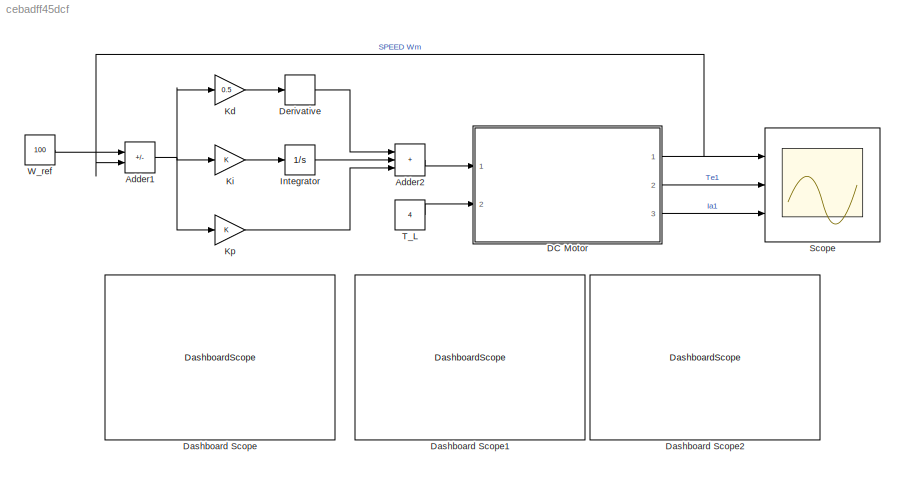
MODEL slx_cebadff45dcf
KIND model
CONFIG AbsTol = auto
CONFIG EnableMultiTasking = off
CONFIG FixedStep = auto
CONFIG MaxStep = auto
CONFIG MinStep = auto
CONFIG RelTol = 1e-3
CONFIG SampleTimeConstraint = Unconstrained
CONFIG SolverName = VariableStepAuto
CONFIG StartTime = 0.0
CONFIG StopTime = 10.0
BLOCK [Sum] Adder1
  IconShape = rectangular
  Inputs = +-
  Ports = [2, 1]
BLOCK [Sum] Adder2
  IconShape = rectangular
  Inputs = +++
  Ports = [3, 1]
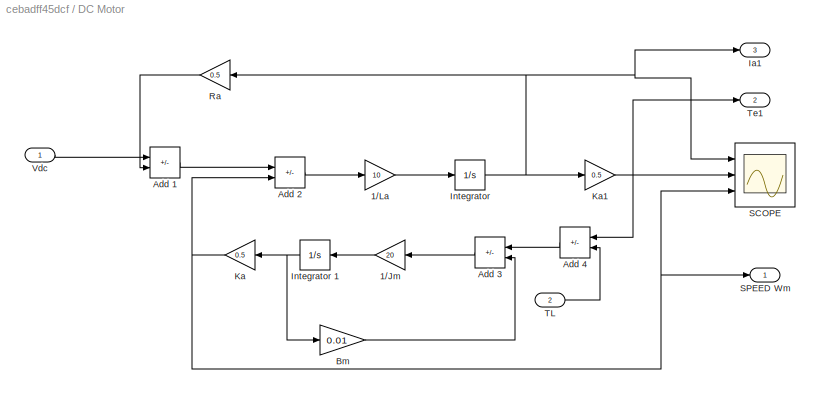
BLOCK [SubSystem] DC Motor
  Ports = [2, 3]
  RequestExecContextInheritance = off
BLOCK [Gain] DC Motor/1//Jm
  Gain = 20
  NameLocation = top
BLOCK [Gain] DC Motor/1//La
  Gain = 10
BLOCK [Sum] DC Motor/Add 1
  IconShape = rectangular
  Inputs = +-
  Ports = [2, 1]
BLOCK [Sum] DC Motor/Add 2
  IconShape = rectangular
  Inputs = +-
  Ports = [2, 1]
BLOCK [Sum] DC Motor/Add 3
  IconShape = rectangular
  Inputs = +-
  NameLocation = top
  Ports = [2, 1]
BLOCK [Sum] DC Motor/Add 4
  IconShape = rectangular
  Inputs = +-
  NameLocation = top
  Ports = [2, 1]
BLOCK [Gain] DC Motor/Bm
  Gain = 0.01
BLOCK [Outport] DC Motor/Ia1
  Port = 3
BLOCK [Integrator] DC Motor/Integrator 
  Ports = [1, 1]
BLOCK [Integrator] DC Motor/Integrator 1
  NameLocation = top
  Ports = [1, 1]
BLOCK [Gain] DC Motor/Ka
  Gain = 0.5
  NameLocation = top
BLOCK [Gain] DC Motor/Ka1
  Gain = 0.5
BLOCK [Gain] DC Motor/Ra
  Gain = 0.5
  NameLocation = top
BLOCK [Scope] DC Motor/SCOPE
  Floating = off
  NumInputPorts = 3
  Ports = [3]
  ScopeSpecificationString = Simulink.scopes.TimeScopeBlockCfg('CurrentConfiguration', extmgr.ConfigurationSet(extmgr.Configuration('Core','General UI',true),extmgr.Configuration('Core','Source UI',true),extmgr.Configuration('Sources','WiredSimulink',true,'DataLoggingVariableName','ScopeData2'),extmgr.Configuration('Visuals','Time Domain',true,'SerializedDisplays',{struct('MinYLimReal','-1.00000','MaxYLimReal','1.00000','YLab...<+1385ch>
BLOCK [Outport] DC Motor/SPEED Wm
BLOCK [Inport] DC Motor/TL
  Port = 2
BLOCK [Outport] DC Motor/Te1
  Port = 2
BLOCK [Inport] DC Motor/Vdc
BLOCK [DashboardScope] Dashboard Scope
BLOCK [DashboardScope] Dashboard Scope1
BLOCK [DashboardScope] Dashboard Scope2
BLOCK [Derivative] Derivative 
BLOCK [Integrator] Integrator 
  Ports = [1, 1]
BLOCK [Gain] Kd
  Gain = 0.5
BLOCK [Gain] Ki
BLOCK [Gain] Kp
BLOCK [Scope] Scope 
  Floating = off
  NumInputPorts = 3
  Ports = [3]
  ScopeSpecificationString = Simulink.scopes.TimeScopeBlockCfg('CurrentConfiguration', extmgr.ConfigurationSet(extmgr.Configuration('Core','General UI',true),extmgr.Configuration('Core','Source UI',true),extmgr.Configuration('Sources','WiredSimulink',true,'DataLoggingVariableName','ScopeData1'),extmgr.Configuration('Visuals','Time Domain',true,'SerializedDisplays',{struct('MinYLimReal','-12.64231','MaxYLimReal','112.37638','Y...<+3161ch>
BLOCK [Constant] T_L
  Value = 4
BLOCK [Constant] W_ref
  Value = 100
NET Adder1:1 -> Kd:1, Ki:1, Kp:1
LINE Adder2:1 -> DC Motor:1
LINE DC Motor/1//Jm:1 -> DC Motor/Integrator 1:1
LINE DC Motor/1//La:1 -> DC Motor/Integrator :1
LINE DC Motor/Add 1:1 -> DC Motor/Add 2:1
LINE DC Motor/Add 2:1 -> DC Motor/1//La:1
LINE DC Motor/Add 3:1 -> DC Motor/1//Jm:1
LINE DC Motor/Add 4:1 -> DC Motor/Add 3:1
LINE DC Motor/Bm:1 -> DC Motor/Add 3:2
NET DC Motor/Integrator 1:1 -> DC Motor/Bm:1, DC Motor/Ka:1
NET DC Motor/Integrator :1 -> DC Motor/Ia1:1, DC Motor/Ka1:1, DC Motor/Ra:1, DC Motor/SCOPE:1
NET DC Motor/Ka1:1 -> DC Motor/Add 4:1, DC Motor/SCOPE:2, DC Motor/Te1:1
NET DC Motor/Ka:1 -> DC Motor/Add 2:2, DC Motor/SCOPE:3, DC Motor/SPEED Wm:1
LINE DC Motor/Ra:1 -> DC Motor/Add 1:2
LINE DC Motor/TL:1 -> DC Motor/Add 4:2
LINE DC Motor/Vdc:1 -> DC Motor/Add 1:1
NET DC Motor:1 -> Adder1:2, Scope :1
LINE DC Motor:2 -> Scope :2
LINE DC Motor:3 -> Scope :3
LINE Derivative :1 -> Adder2:1
LINE Integrator :1 -> Adder2:2
LINE Kd:1 -> Derivative :1
LINE Ki:1 -> Integrator :1
LINE Kp:1 -> Adder2:3
LINE T_L:1 -> DC Motor:2
LINE W_ref:1 -> Adder1:1
note: NET lines group one-source signal fan-out (src -> all destinations, sorted); 1:1 wires keep LINE
